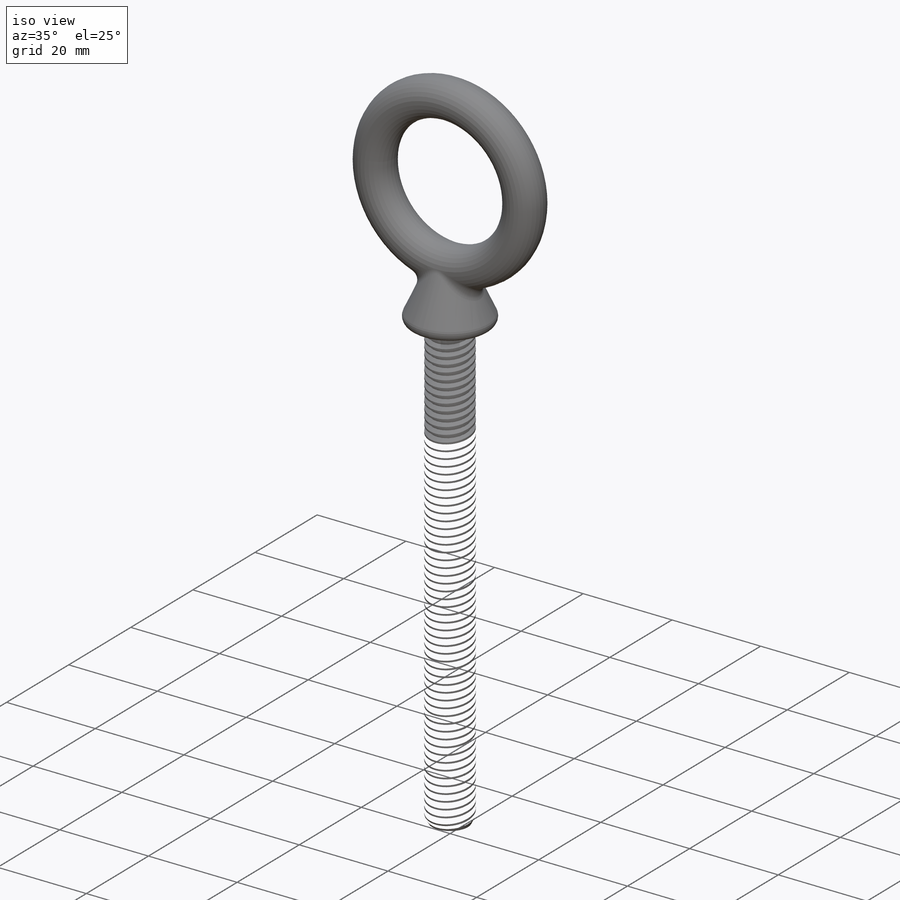
[diagram: iso view]
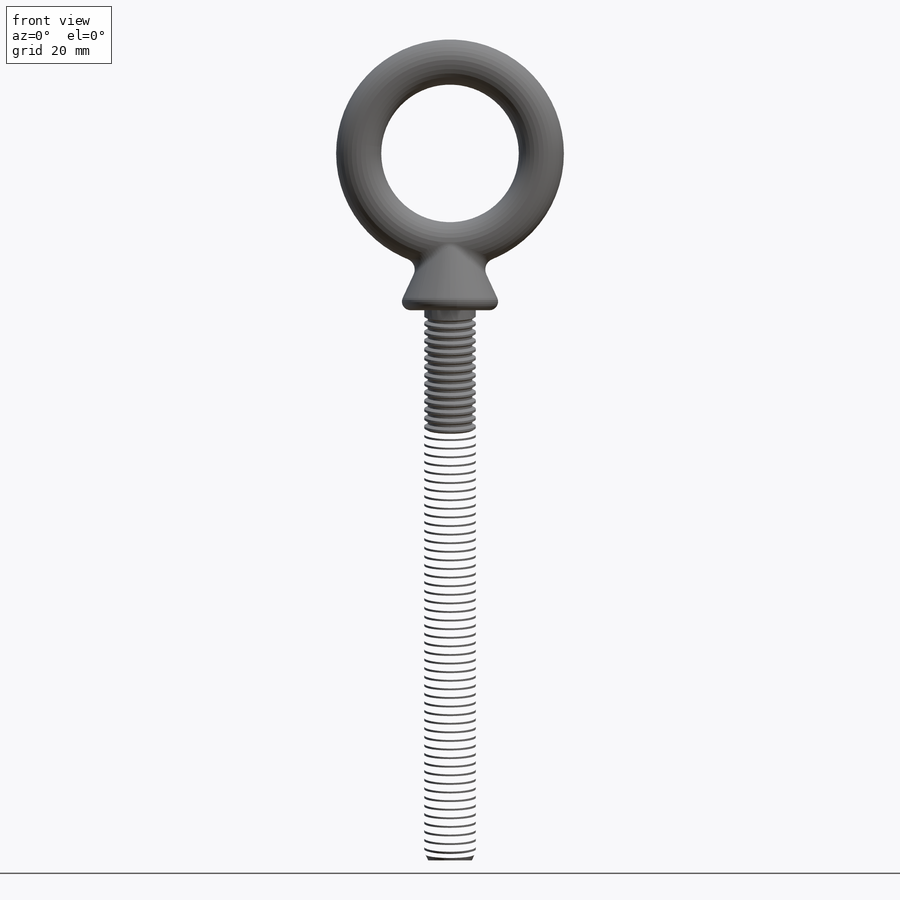
[diagram: front view]
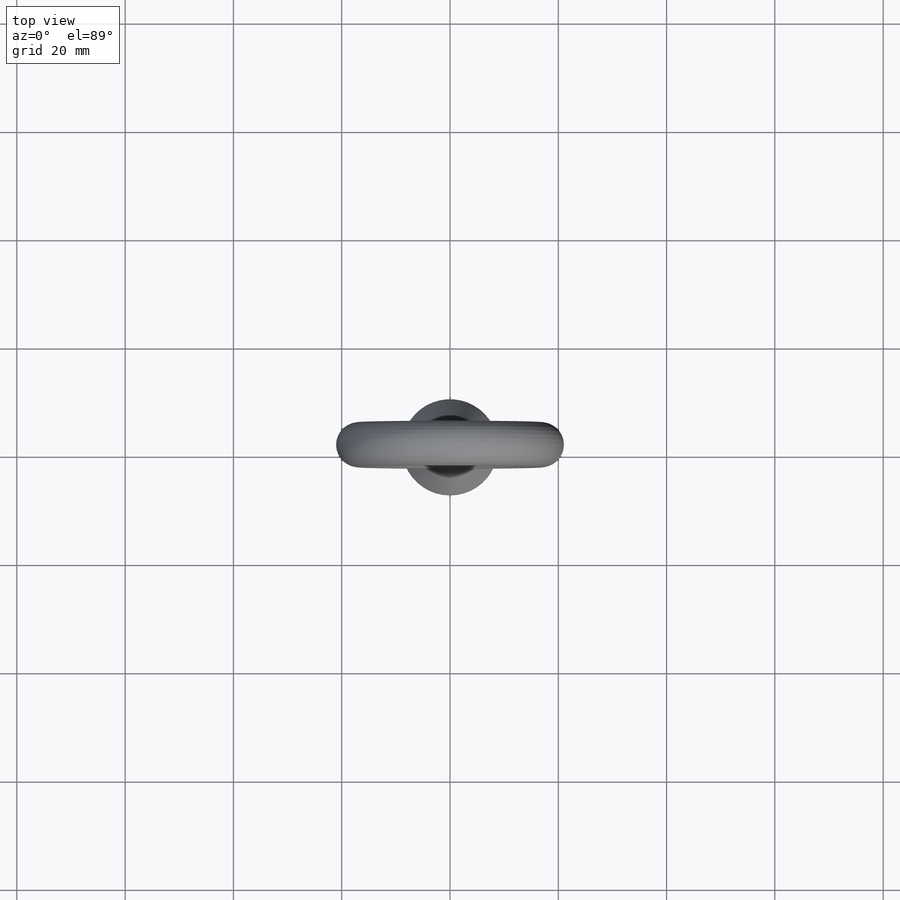
[diagram: top view]
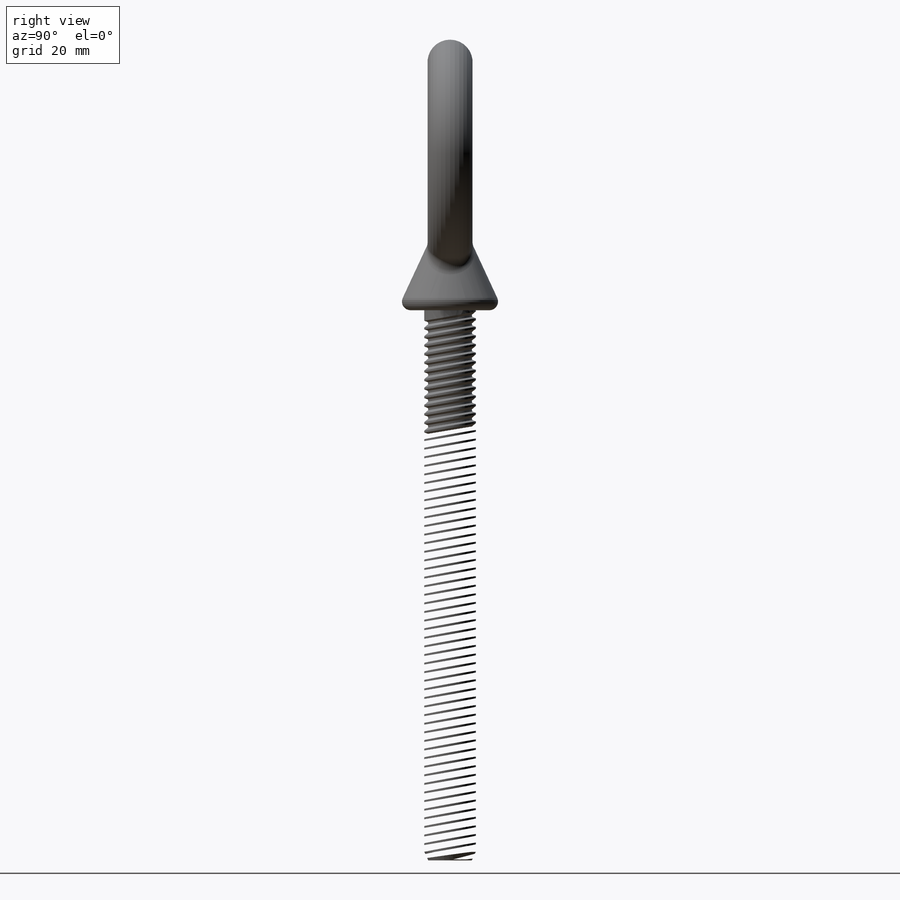
[diagram: right view]
SOLIDWORKS PART (.sldprt)
format: sldprt  version: not decoded by parser v0  size: 792,576 bytes
history: native  units: mm
features: sketch x5, revolve x2, cut_revolve x2, material x1, fillet x1, pattern_linear x1 (+12 scaffold rows collapsed)
feature tree (24):
  scaffold x12  (default folders/planes/origin — collapsed)
  material  "Material <not specified>"
  sketch  "Sketch1"  dims[c1.D1=~13.65547mm c1.D2=~13.65547mm c2.D1=~8.334375mm c2.D3=~8.334375mm c2.Eye OD=~42.06875mm c2.Eye ID=25.4mm]
  revolve  "Revolve1"  Angle=360deg
  sketch  "Sketch3"  dims[c1.D1=~34.13125mm c1.D2=~3.637366mm c1.Shoulder Dia=17.78mm c1.Thread Dia=9.525mm c1.Overall Length=~151.60625mm c1.Shank Length=101.6mm c2.D1=~5.379634mm]
  revolve  "Revolve2"  Angle=360deg
  fillet  "Fillet1"  Radius=2.083594mm
  sketch  "Sketch4"  dims[c1.D1=~6.050904mm c2.D1=60.0deg c2.Thread Pitch=1.5875mm c2.D2=~0.198437mm c2.D3=~0.396875mm c2.D4=1.5875mm c2.Non-Thread=0.0254mm c2.Thread Length=101.6mm]
  cut_revolve  "Cut-Revolve1"  Angle=360deg
  sketch  "Sketch5"  dims[c1.D1=~5.599585mm c2.D1=25.0deg]
  cut_revolve  "Cut-Revolve2"  Angle=360deg
  pattern_linear  "LPattern1"  Count1=64 Count2=1 Spacing1=1.5875mm Spacing2=50mm
  sketch  "Sketch6"
decode coverage: 10 of 11 modeling features carry decoded parameters
note: ~ marks probable driven/reference dimensions
note: suppression state not decoded; provenance and decode notes live in map.json
